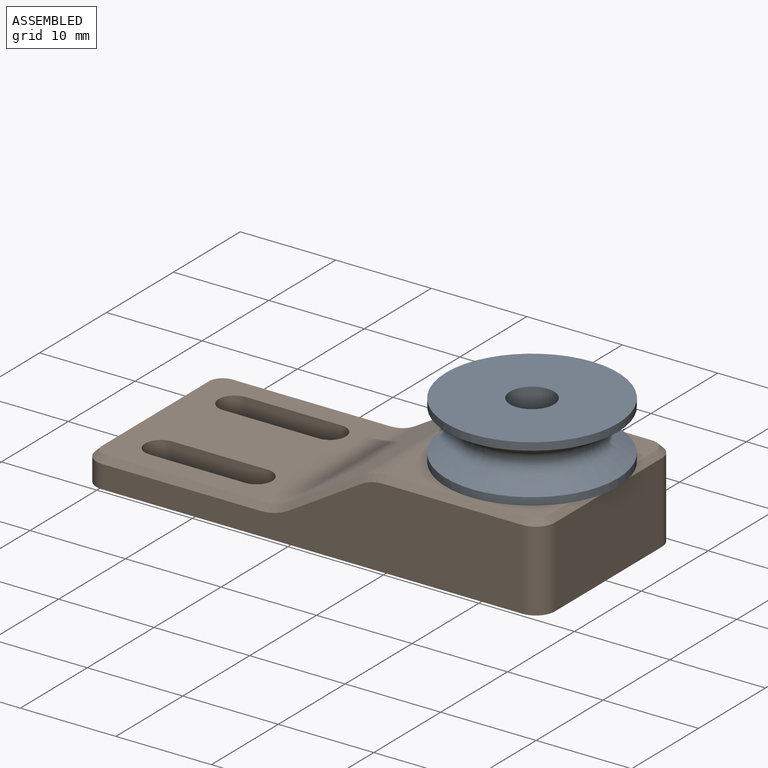
[diagram: assembled view]
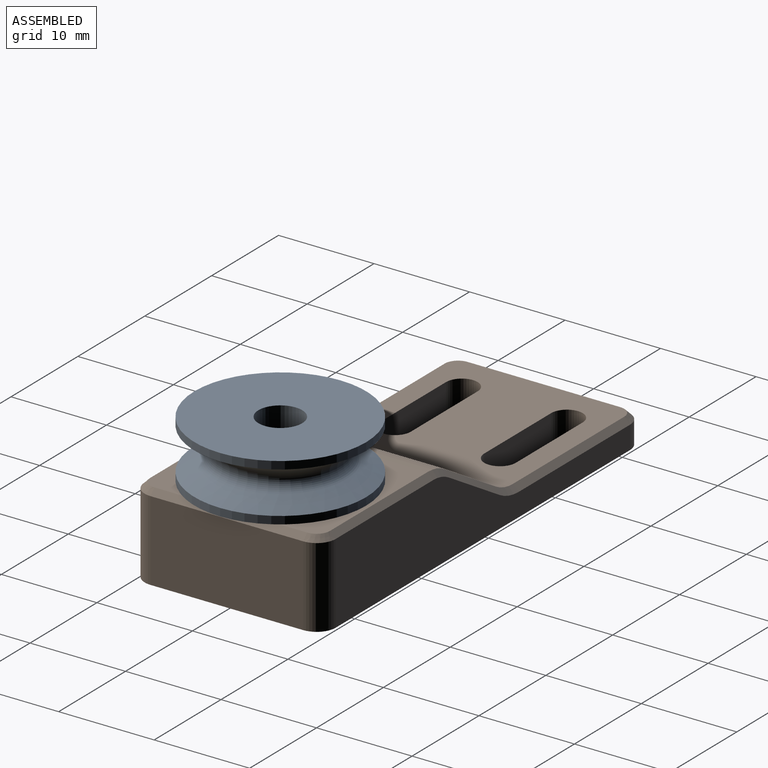
[diagram: assembled view, second angle]
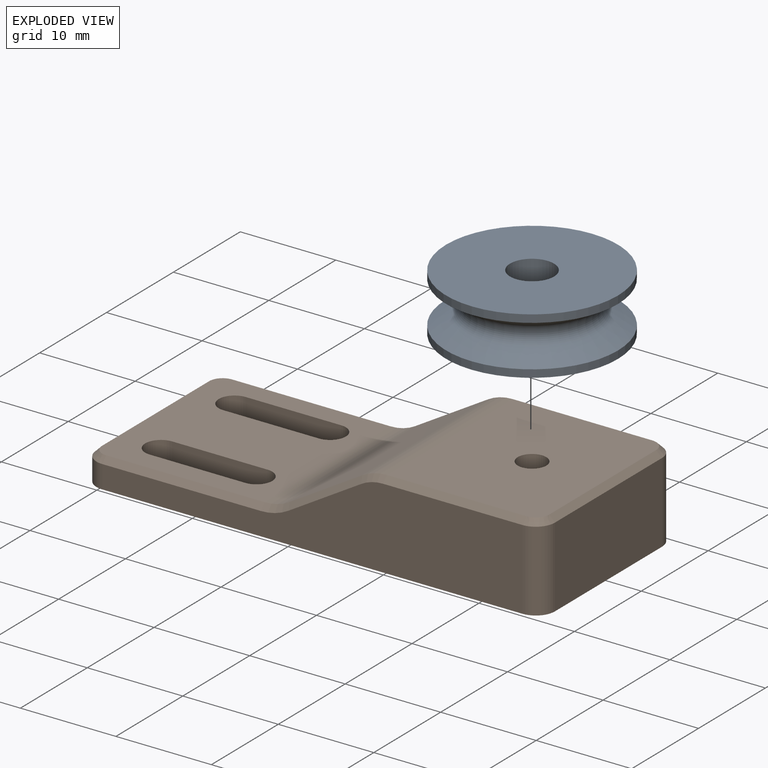
[diagram: exploded view]
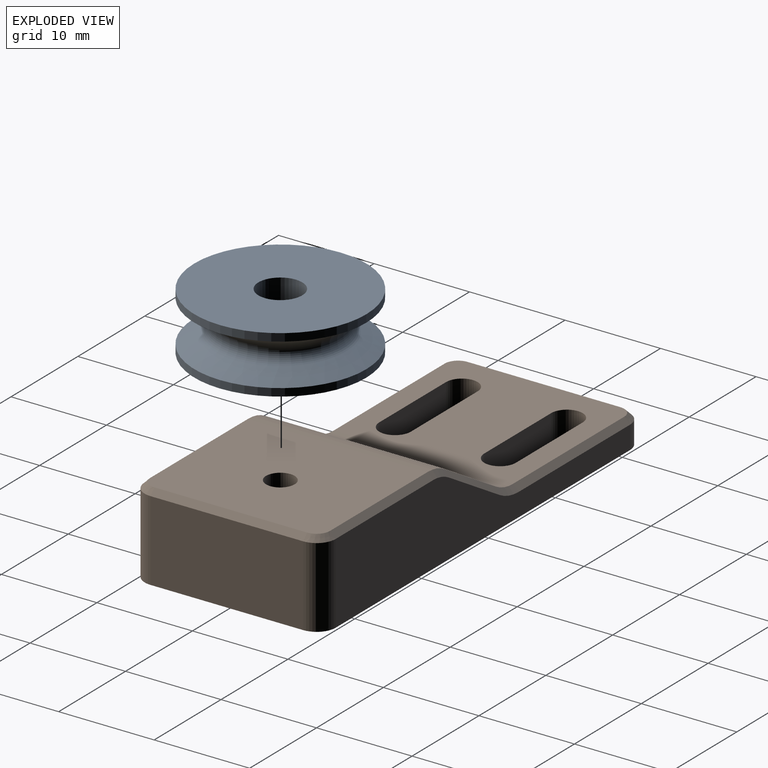
[diagram: exploded view, second angle]
ASSEMBLY  parts=2 mates=2
PART A: 8 faces, bbox 18x18x6 mm
  f0: cone r=6.91mm half-angle=61.2deg, axis (0,0,-1), area 119.1mm2, adj f1,f6
  f1: torus R=7.49mm, axis (0,0,-1), area 104.8mm2, adj f0,f2
  f2: cone r=9mm half-angle=61.2deg, axis (0,0,1), area 119.1mm2, adj f1,f3
  f3: cylinder r=9mm len=18mm, axis (0,0,-1), area 45.2mm2, adj f2,f4
  f4: plane 18x18mm, normal (0,0,1), area 237.8mm2, adj f3,f7
  f5: plane 18x18mm, normal (0,0,-1), area 237.8mm2, adj f6,f7
  f6: cylinder r=9mm len=18mm, axis (0,0,-1), area 45.2mm2, adj f0,f5
  f7: cylinder r=2.3mm len=6mm, axis (0,0,1), area 86.7mm2, adj f4,f5
PART B: 39 faces, bbox 48x20x9 mm
  f0: plane 48x20mm, normal (0,0,-1), area 866.4mm2, adj f2,f5,f6,f7,f8,f9,f10,f11
  f1: plane 18.8x18.02mm, normal (0,0,1), area 254.7mm2, adj f9,f10,f11,f12,f13,f14,f15,f16
  f2: plane 16x8.4mm, normal (1,0,0), area 134.4mm2, adj f0,f19,f21,f33
  f3: plane 18.8x16.02mm, normal (0,0,1), area 293.2mm2, adj f8,f17,f29,f31,f33,f35,f37
  f4: plane 18.8x7.63mm, normal (-0.51,0,0.86), area 167.2mm2, adj f17,f18,f25,f36
  f5: plane 16x2.4mm, normal (-1,0,0), area 38.4mm2, adj f0,f20,f22,f28
  f6: plane 44x8.4mm, normal (0,-1,0), area 230.7mm2, adj f0,f21,f22,f23,f24,f25,f27,f29
  f7: plane 44x8.4mm, normal (0,1,0), area 230.7mm2, adj f0,f19,f20,f32,f34,f36,f37,f38
  f8: cylinder r=1.5mm len=9mm, axis (0,0,1), area 84.8mm2, adj f0,f3
  f9: cylinder r=1.65mm len=3.3mm, axis (0,0,1), area 15.6mm2, adj f0,f1,f10,f12
  f10: plane 10x3mm, normal (0,-1,0), area 30mm2, adj f0,f1,f9,f11
  f11: cylinder r=1.65mm len=3.3mm, axis (0,0,1), area 15.6mm2, adj f0,f1,f10,f12
  f12: plane 10x3mm, normal (0,1,0), area 30mm2, adj f0,f1,f9,f11
  f13: cylinder r=1.65mm len=3.3mm, axis (0,0,1), area 15.6mm2, adj f0,f1,f14,f16
  f14: plane 10x3mm, normal (0,1,0), area 30mm2, adj f0,f1,f13,f15
  f15: cylinder r=1.65mm len=3.3mm, axis (0,0,1), area 15.6mm2, adj f0,f1,f14,f16
  f16: plane 10x3mm, normal (0,-1,0), area 30mm2, adj f0,f1,f13,f15
  f17: cylinder r=5mm len=18.8mm, axis (0,1,0), area 50.8mm2, adj f3,f4,f27,f38
  f18: cylinder r=5mm len=18.8mm, axis (0,-1,0), area 50.8mm2, adj f1,f4,f23,f34
  f19: cylinder r=2mm len=8.4mm, axis (0,0,1), area 26.4mm2, adj f0,f2,f7,f35
  f20: cylinder r=2mm len=2.4mm, axis (0,0,-1), area 7.5mm2, adj f0,f5,f7,f30
  f21: cylinder r=2mm len=8.4mm, axis (0,0,-1), area 26.4mm2, adj f0,f2,f6,f31
  f22: cylinder r=2mm len=2.4mm, axis (0,0,1), area 7.5mm2, adj f0,f5,f6,f26
  f23: cone r=5.6mm half-angle=45deg, axis (0,-1,0), area 2.4mm2, adj f6,f18,f24,f25
  f24: plane 16.62x0.6mm, normal (0,-0.71,0.71), area 14.1mm2, adj f1,f6,f23,f26
  f25: plane 7.93x5.09mm, normal (-0.36,-0.71,0.61), area 7.5mm2, adj f4,f6,f23,f27
  f26: cone r=1.4mm half-angle=45deg, axis (0,0,-1), area 2.3mm2, adj f1,f22,f24,f28
  f27: cone r=4.4mm half-angle=45deg, axis (0,1,0), area 2.2mm2, adj f6,f17,f25,f29
  f28: plane 16x0.6mm, normal (-0.71,0,0.71), area 13.6mm2, adj f1,f5,f26,f30
  f29: plane 14.62x0.6mm, normal (0,-0.71,0.71), area 12.4mm2, adj f3,f6,f27,f31
  f30: cone r=1.4mm half-angle=45deg, axis (0,0,-1), area 2.3mm2, adj f1,f20,f28,f32
  f31: cone r=1.4mm half-angle=45deg, axis (0,0,-1), area 2.3mm2, adj f3,f21,f29,f33
  f32: plane 16.62x0.6mm, normal (0,0.71,0.71), area 14.1mm2, adj f1,f7,f30,f34
  f33: plane 16x0.6mm, normal (0.71,0,0.71), area 13.6mm2, adj f2,f3,f31,f35
  f34: cone r=5.6mm half-angle=45deg, axis (0,1,0), area 2.4mm2, adj f7,f18,f32,f36
  f35: cone r=1.4mm half-angle=45deg, axis (0,0,-1), area 2.3mm2, adj f3,f19,f33,f37
  f36: plane 7.93x5.09mm, normal (-0.36,0.71,0.61), area 7.5mm2, adj f4,f7,f34,f38
  f37: plane 14.62x0.6mm, normal (0,0.71,0.71), area 12.4mm2, adj f3,f7,f35,f38
  f38: cone r=4.4mm half-angle=45deg, axis (0,-1,0), area 2.2mm2, adj f7,f17,f36,f37
PLACE A t=(-17.3,-15.9,12.49)mm
PLACE B t=(-9.3,-5.9,0.49)mm fixed
MATE cylindrical A.f7 <-> B.f8  axis (0,0,1) through (-17.3,-15.9,15.49)mm
MATE planar A.f0 <-> B.f3  axis (0,0,-1) through (-17.3,-15.9,9.49)mm
